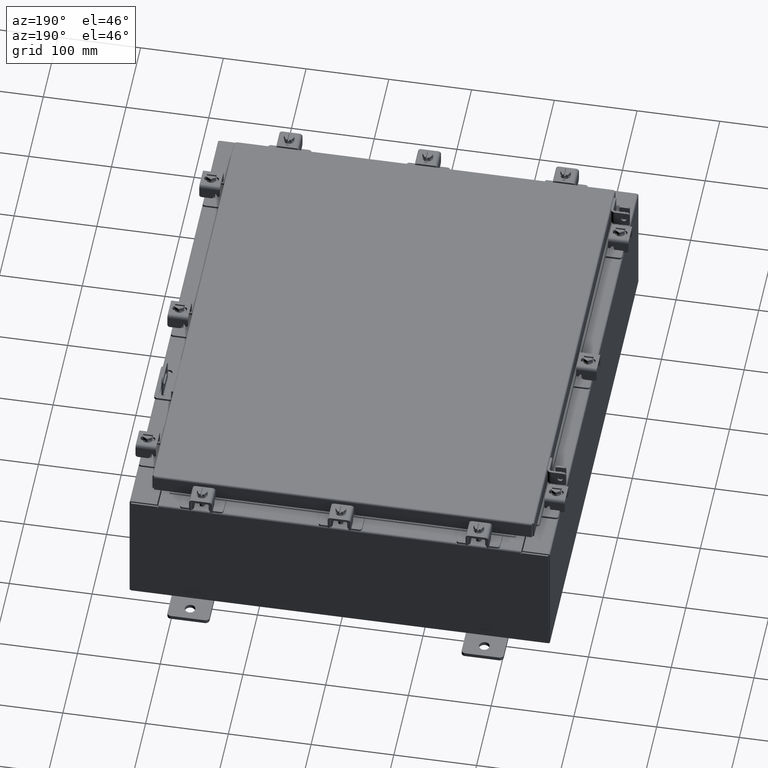
[diagram: clean part render]
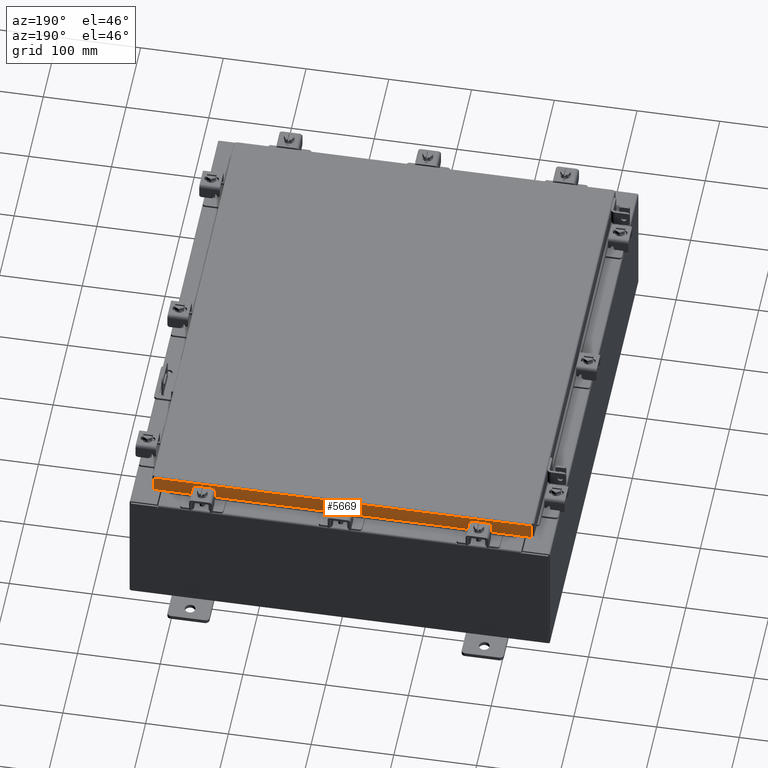
[diagram: same view with one face highlighted and labeled with its STEP entity id]
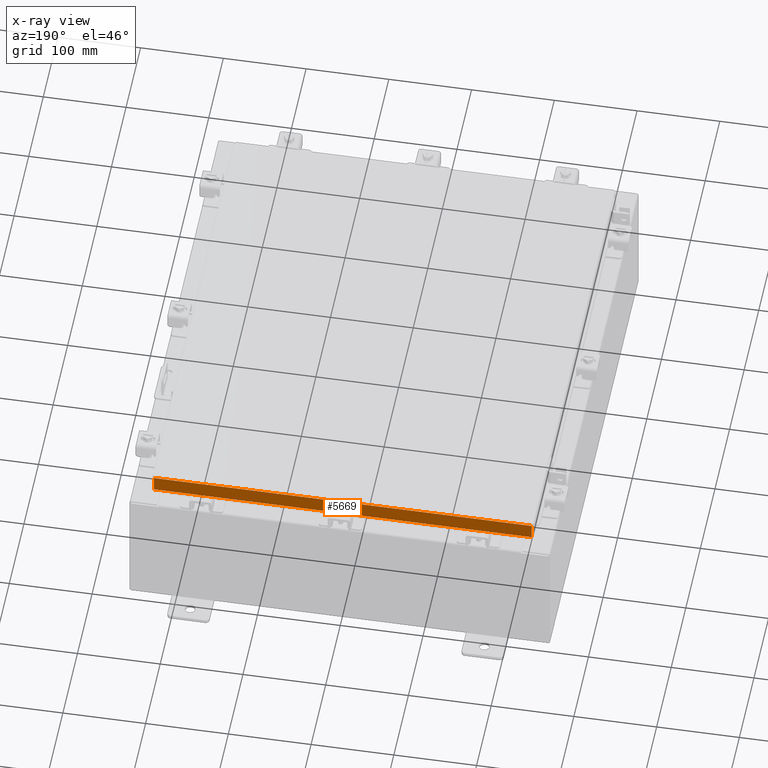
[diagram: x-ray of the same camera — body ghosted, the highlighted face saturated]
A machine part, auxiliary view. The second image highlights one B-rep face of the part: STEP entity #5669.
The next image is the same camera in x-ray: the body ghosted, the highlighted face saturated — about 0% of this face is hidden behind the body in this view.
In plain terms, the highlighted planar face has unit normal (0, -1, -0).
Its self-contained STEP definition (entity closure, byte-faithful):
#142 = DIRECTION ( 'NONE',  ( 0.0000000000000000000, 2.818880942772351900E-015, -1.000000000000000000 ) ) ;
#161 = ORIENTED_EDGE ( 'NONE', *, *, #811, .F. ) ;
#811 = EDGE_CURVE ( 'NONE', #15361, #18921, #11449, .T. ) ;
#3163 = CARTESIAN_POINT ( 'NONE',  ( -3.999633315828819900E-030, 11.09399999999999900, 3.153347883512804900E-014 ) ) ;
#3390 = EDGE_CURVE ( 'NONE', #7997, #11346, #11755, .T. ) ;
#4024 = CARTESIAN_POINT ( 'NONE',  ( -9.077999999999999400, 11.09400000000000100, -0.8500000000000019800 ) ) ;
#4417 = VERTEX_POINT ( 'NONE', #11934 ) ;
#4576 = EDGE_CURVE ( 'NONE', #7997, #8561, #13619, .T. ) ;
#4931 = PLANE ( 'NONE',  #10146 ) ;
#5377 = CARTESIAN_POINT ( 'NONE',  ( -8.989157864376267100, 11.09399999999999900, -0.07469999999999978000 ) ) ;
#5503 = LINE ( 'NONE', #4024, #13669 ) ;
#5669 = ADVANCED_FACE ( 'NONE', ( #9486 ), #4931, .F. ) ;
#6038 = EDGE_LOOP ( 'NONE', ( #18847, #17898, #21586, #161, #14328, #8023 ) ) ;
#6774 = CARTESIAN_POINT ( 'NONE',  ( -9.077999999999999400, 11.09399999999999900, -0.08770000000000007000 ) ) ;
#7997 = VERTEX_POINT ( 'NONE', #11447 ) ;
#8023 = ORIENTED_EDGE ( 'NONE', *, *, #14797, .F. ) ;
#8510 = DIRECTION ( 'NONE',  ( -1.000000000000000000, -3.605222026166234800E-031, -9.826997386333231700E-046 ) ) ;
#8534 = EDGE_CURVE ( 'NONE', #4417, #15361, #21116, .T. ) ;
#8561 = VERTEX_POINT ( 'NONE', #18380 ) ;
#9486 = FACE_OUTER_BOUND ( 'NONE', #6038, .T. ) ;
#10146 = AXIS2_PLACEMENT_3D ( 'NONE', #3163, #20621, #10170 ) ;
#10170 = DIRECTION ( 'NONE',  ( 0.0000000000000000000, 2.818880942772351900E-015, -1.000000000000000000 ) ) ;
#10898 = VECTOR ( 'NONE', #11705, 39.37007874015748100 ) ;
#11346 = VERTEX_POINT ( 'NONE', #19821 ) ;
#11447 = CARTESIAN_POINT ( 'NONE',  ( 8.989157864376267100, 11.09399999999999900, -0.08770000000000007000 ) ) ;
#11449 = LINE ( 'NONE', #21966, #10898 ) ;
#11705 = DIRECTION ( 'NONE',  ( 1.000000000000000000, -0.0000000000000000000, -0.0000000000000000000 ) ) ;
#11755 = LINE ( 'NONE', #6774, #15856 ) ;
#11823 = VECTOR ( 'NONE', #21747, 39.37007874015748100 ) ;
#11934 = CARTESIAN_POINT ( 'NONE',  ( -8.989157864376267100, 11.09400000000000100, -0.8500000000000019800 ) ) ;
#11993 = EDGE_CURVE ( 'NONE', #18921, #8561, #5503, .T. ) ;
#12369 = DIRECTION ( 'NONE',  ( -0.0000000000000000000, 2.818880942772351900E-015, -1.000000000000000000 ) ) ;
#13056 = CARTESIAN_POINT ( 'NONE',  ( -9.077999999999999400, 11.09400000000000100, -0.8500000000000019800 ) ) ;
#13545 = LINE ( 'NONE', #5377, #22268 ) ;
#13619 = LINE ( 'NONE', #19249, #22354 ) ;
#13669 = VECTOR ( 'NONE', #16217, 39.37007874015748100 ) ;
#14328 = ORIENTED_EDGE ( 'NONE', *, *, #8534, .F. ) ;
#14797 = EDGE_CURVE ( 'NONE', #11346, #4417, #13545, .T. ) ;
#15361 = VERTEX_POINT ( 'NONE', #22580 ) ;
#15856 = VECTOR ( 'NONE', #8510, 39.37007874015748100 ) ;
#16217 = DIRECTION ( 'NONE',  ( 1.000000000000000000, -4.379057701015054300E-047, 1.278955053213606700E-016 ) ) ;
#17898 = ORIENTED_EDGE ( 'NONE', *, *, #4576, .T. ) ;
#18380 = CARTESIAN_POINT ( 'NONE',  ( 8.989157864376267100, 11.09400000000000100, -0.8499999999999996400 ) ) ;
#18847 = ORIENTED_EDGE ( 'NONE', *, *, #3390, .F. ) ;
#18889 = CARTESIAN_POINT ( 'NONE',  ( 8.239157864376267100, 11.09399999999999900, -0.8500000000000046400 ) ) ;
#18921 = VERTEX_POINT ( 'NONE', #18889 ) ;
#19249 = CARTESIAN_POINT ( 'NONE',  ( 8.989157864376267100, 11.09399999999999900, 3.153347883512804900E-014 ) ) ;
#19821 = CARTESIAN_POINT ( 'NONE',  ( -8.989157864376267100, 11.09399999999999900, -0.08770000000000007000 ) ) ;
#20621 = DIRECTION ( 'NONE',  ( 3.605222026166233900E-031, -1.000000000000000000, -2.818880942772351900E-015 ) ) ;
#21116 = LINE ( 'NONE', #13056, #11823 ) ;
#21586 = ORIENTED_EDGE ( 'NONE', *, *, #11993, .F. ) ;
#21747 = DIRECTION ( 'NONE',  ( 1.000000000000000000, -4.379057701015054300E-047, 1.278955053213606700E-016 ) ) ;
#21966 = CARTESIAN_POINT ( 'NONE',  ( -8.239157864376267100, 11.09399999999999900, -0.8500000000000046400 ) ) ;
#22268 = VECTOR ( 'NONE', #12369, 39.37007874015748100 ) ;
#22354 = VECTOR ( 'NONE', #142, 39.37007874015748100 ) ;
#22580 = CARTESIAN_POINT ( 'NONE',  ( -8.239157864376267100, 11.09399999999999900, -0.8500000000000046400 ) ) ;